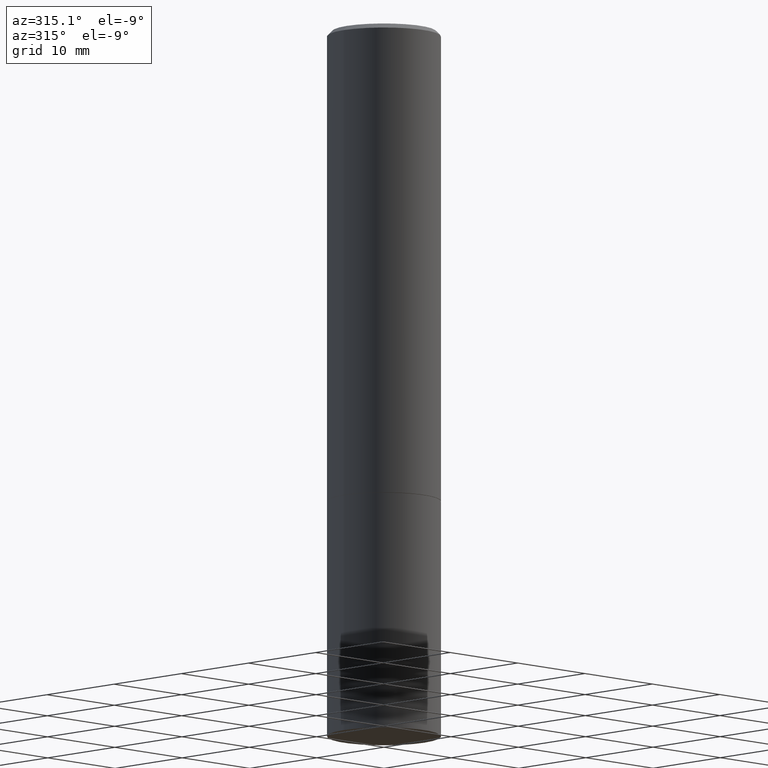
[diagram: clean part render]
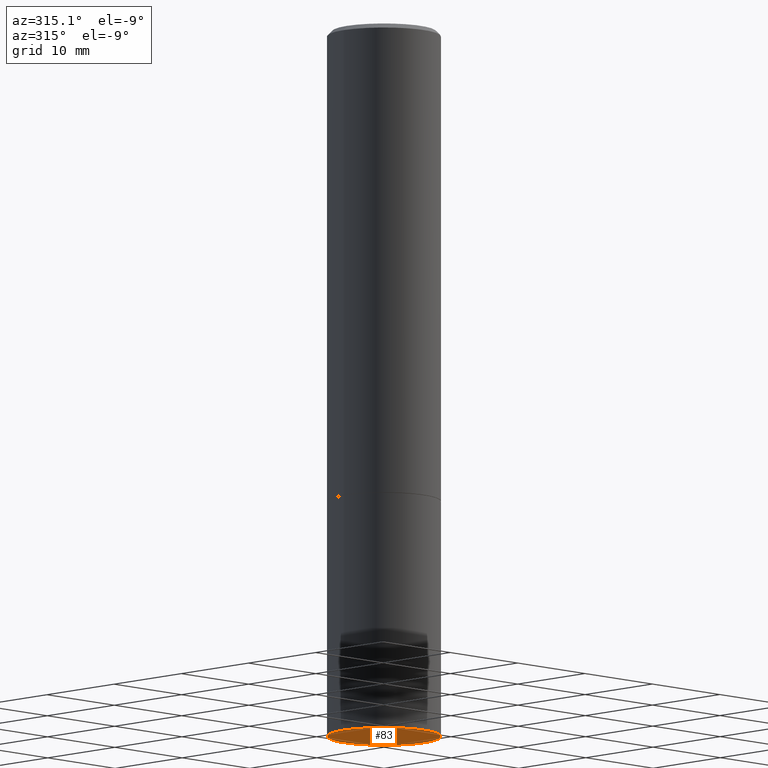
[diagram: same view with one face highlighted and labeled with its STEP entity id]
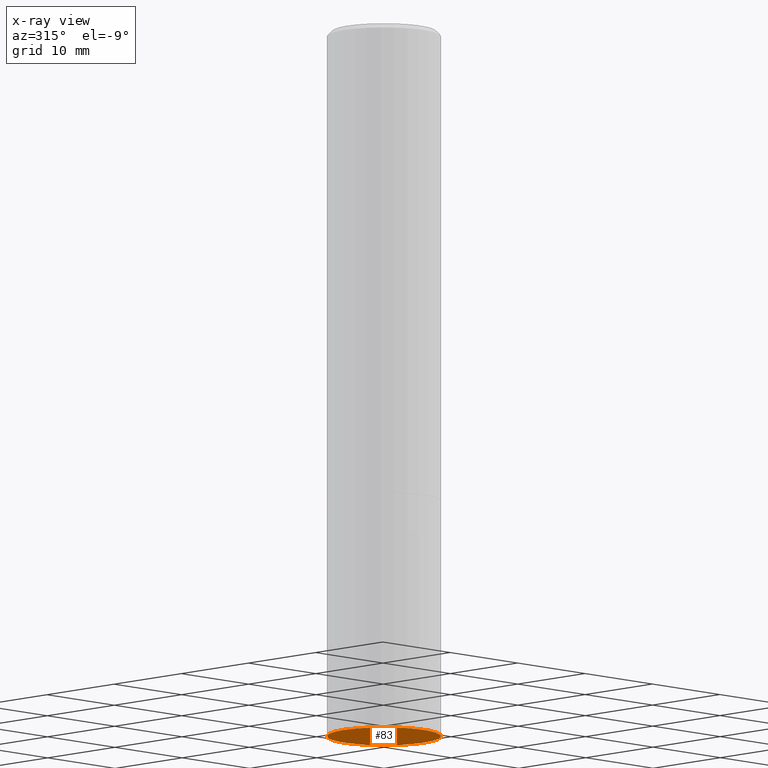
[diagram: x-ray of the same camera — body ghosted, the highlighted face saturated]
A machine part, auxiliary view. The second image highlights one B-rep face of the part: STEP entity #83.
The next image is the same camera in x-ray: the body ghosted, the highlighted face saturated — about 0% of this face is hidden behind the body in this view.
In plain terms, the highlighted planar face has unit normal (0, -0, -1).
Its self-contained STEP definition (entity closure, byte-faithful):
#19 = DIRECTION ( 'NONE',  ( 1.000000000000000000, -6.982962677686265133E-15, 0.000000000000000000 ) ) ;
#21 = DIRECTION ( 'NONE',  ( 2.438088387897960049E-29, -3.491481338843145188E-15, -1.000000000000000000 ) ) ;
#25 = PLANE ( 'NONE',  #74 ) ;
#28 = DIRECTION ( 'NONE',  ( 1.000000000000000000, -6.982962677686265133E-15, 0.000000000000000000 ) ) ;
#51 = CARTESIAN_POINT ( 'NONE',  ( 1.649375784469568312E-15, 0.2361999999999896960, -2.952800000000000757 ) ) ;
#62 = DIRECTION ( 'NONE',  ( -2.445468806185136597E-29, 3.491481338843145583E-15, 1.000000000000000000 ) ) ;
#74 = AXIS2_PLACEMENT_3D ( 'NONE', #51, #21, #80 ) ;
#80 = DIRECTION ( 'NONE',  ( -1.000000000000000000, 6.982962677686265922E-15, -4.876176775795935793E-29 ) ) ;
#83 = ADVANCED_FACE ( 'NONE', ( #138 ), #25, .T. ) ;
#117 = CARTESIAN_POINT ( 'NONE',  ( 7.220980290903470182E-29, -1.030964609733603853E-14, -2.952799999999999869 ) ) ;
#138 = FACE_OUTER_BOUND ( 'NONE', #228, .T. ) ;
#144 = ORIENTED_EDGE ( 'NONE', *, *, #220, .F. ) ;
#157 = EDGE_CURVE ( 'NONE', #281, #176, #346, .T. ) ;
#165 = CARTESIAN_POINT ( 'NONE',  ( 7.220980290903470182E-29, -1.030964609733603853E-14, -2.952799999999999869 ) ) ;
#168 = CARTESIAN_POINT ( 'NONE',  ( -0.2361999999999999933, -6.913011614559027935E-15, -2.952799999999999869 ) ) ;
#174 = CARTESIAN_POINT ( 'NONE',  ( 0.2361999999999999933, -1.195902188180553348E-14, -2.952799999999999869 ) ) ;
#176 = VERTEX_POINT ( 'NONE', #174 ) ;
#220 = EDGE_CURVE ( 'NONE', #176, #281, #226, .T. ) ;
#226 = CIRCLE ( 'NONE', #332, 0.2361999999999999933 ) ;
#228 = EDGE_LOOP ( 'NONE', ( #144, #349 ) ) ;
#274 = DIRECTION ( 'NONE',  ( -2.445468806185136597E-29, 3.491481338843145583E-15, 1.000000000000000000 ) ) ;
#281 = VERTEX_POINT ( 'NONE', #168 ) ;
#332 = AXIS2_PLACEMENT_3D ( 'NONE', #117, #62, #28 ) ;
#346 = CIRCLE ( 'NONE', #356, 0.2361999999999999933 ) ;
#349 = ORIENTED_EDGE ( 'NONE', *, *, #157, .F. ) ;
#356 = AXIS2_PLACEMENT_3D ( 'NONE', #165, #274, #19 ) ;